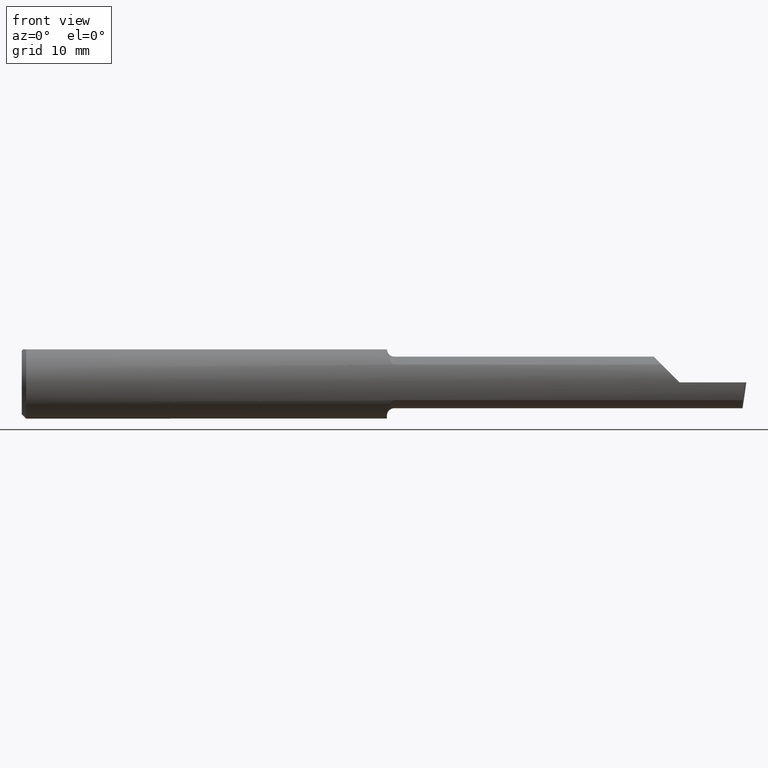
[diagram: clean part render]
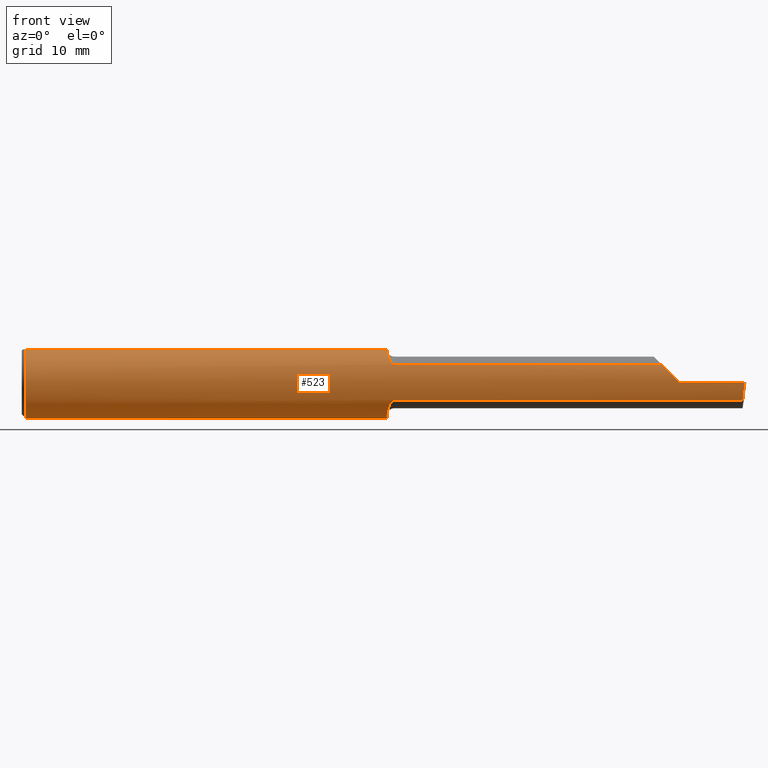
[diagram: same view with one face highlighted and labeled with its STEP entity id]
A machine part, front view. The second image highlights one B-rep face of the part: STEP entity #523.
In plain terms, the highlighted cylindrical surface (edge-blend (fillet) strip) has radius 3.1712 mm, axis along (-1, -0, -0).
Its self-contained STEP definition (entity closure, byte-faithful):
#2 = DIRECTION ( 'NONE',  ( -1.000000000000000000, -0.0000000000000000000, -0.0000000000000000000 ) ) ;
#4 = VERTEX_POINT ( 'NONE', #612 ) ;
#6 = VECTOR ( 'NONE', #229, 39.37007874015748143 ) ;
#8 = CARTESIAN_POINT ( 'NONE',  ( 0.0000000000000000000, 0.0000000000000000000, 0.0000000000000000000 ) ) ;
#9 = CARTESIAN_POINT ( 'NONE',  ( 1.281430773366643461, -0.1083837666170488351, -0.06198269038834007538 ) ) ;
#15 = CIRCLE ( 'NONE', #607, 0.1248500000000000026 ) ;
#23 = B_SPLINE_CURVE_WITH_KNOTS ( 'NONE', 3,
 ( #427, #216, #429, #33, #84, #262, #485, #204, #269, #527, #196, #312, #325, #706 ),
 .UNSPECIFIED., .F., .F.,
 ( 4, 2, 2, 2, 2, 2, 4 ),
 ( 4.804672440286754223E-07, 0.0005473133578846782824, 0.001094146248525327755, 0.001640979139165977445, 0.001914395584486301965, 0.002051103807146470188, 0.002187812029806637543 ),
 .UNSPECIFIED. ) ;
#26 = ORIENTED_EDGE ( 'NONE', *, *, #158, .T. ) ;
#27 = CYLINDRICAL_SURFACE ( 'NONE', #506, 0.1248500000000000026 ) ;
#33 = CARTESIAN_POINT ( 'NONE',  ( 1.261949480984350558, -0.07596136197082528629, 0.09933958580654499160 ) ) ;
#43 = VERTEX_POINT ( 'NONE', #57 ) ;
#47 = CARTESIAN_POINT ( 'NONE',  ( 4.111069666048746882E-31, -0.1248499999999999888, 9.802154982235641300E-16 ) ) ;
#54 = CIRCLE ( 'NONE', #532, 0.1248500000000000026 ) ;
#57 = CARTESIAN_POINT ( 'NONE',  ( 0.01499999999999999424, 0.0000000000000000000, -0.1248500000000000026 ) ) ;
#66 = ORIENTED_EDGE ( 'NONE', *, *, #483, .F. ) ;
#71 = CARTESIAN_POINT ( 'NONE',  ( 1.272652750757542472, -0.1022351105670217114, -0.07173965961731927632 ) ) ;
#72 = VERTEX_POINT ( 'NONE', #561 ) ;
#77 = CARTESIAN_POINT ( 'NONE',  ( 1.268397821753969978, -0.09628495161689389070, -0.07975604660947217817 ) ) ;
#79 = CARTESIAN_POINT ( 'NONE',  ( 1.261502585305459334, -0.07647633808930123789, -0.09967851947582057059 ) ) ;
#84 = CARTESIAN_POINT ( 'NONE',  ( 1.263123628621569905, -0.08156933505717113564, 0.09478144068341103068 ) ) ;
#86 = DIRECTION ( 'NONE',  ( -1.000000000000000000, -0.0000000000000000000, -0.0000000000000000000 ) ) ;
#87 = VECTOR ( 'NONE', #421, 39.37007874015748143 ) ;
#97 = LINE ( 'NONE', #405, #655 ) ;
#120 = ORIENTED_EDGE ( 'NONE', *, *, #211, .F. ) ;
#126 = CARTESIAN_POINT ( 'NONE',  ( 1.274260533375047189, -0.1040753176265711288, -0.06902783361385360361 ) ) ;
#133 = CARTESIAN_POINT ( 'NONE',  ( 1.266341859756230370, -0.09164079654472230552, -0.08508064213884949933 ) ) ;
#139 = ORIENTED_EDGE ( 'NONE', *, *, #141, .F. ) ;
#141 = EDGE_CURVE ( 'NONE', #43, #422, #15, .T. ) ;
#146 = CARTESIAN_POINT ( 'NONE',  ( 2.494815187529301426, -0.1248500000000000304, -6.610128768667490488E-17 ) ) ;
#151 = AXIS2_PLACEMENT_3D ( 'NONE', #707, #86, #481 ) ;
#154 = VECTOR ( 'NONE', #168, 39.37007874015748143 ) ;
#158 = EDGE_CURVE ( 'NONE', #303, #422, #715, .T. ) ;
#168 = DIRECTION ( 'NONE',  ( -1.000000000000000000, -0.0000000000000000000, -0.0000000000000000000 ) ) ;
#171 = CARTESIAN_POINT ( 'NONE',  ( 2.487716879513912627, -0.1088159090909092686, -0.06120964326573853642 ) ) ;
#173 = EDGE_CURVE ( 'NONE', #522, #224, #648, .T. ) ;
#174 = VERTEX_POINT ( 'NONE', #467 ) ;
#176 = DIRECTION ( 'NONE',  ( -1.000000000000000000, -0.0000000000000000000, -0.0000000000000000000 ) ) ;
#179 = CARTESIAN_POINT ( 'NONE',  ( 1.285000000000000142, -0.1088159090909091714, -0.06120964326573855724 ) ) ;
#189 = ORIENTED_EDGE ( 'NONE', *, *, #209, .T. ) ;
#190 = LINE ( 'NONE', #47, #154 ) ;
#195 = CARTESIAN_POINT ( 'NONE',  ( 1.785000000000000142, -0.1088159090909092686, 0.06120964326573853642 ) ) ;
#196 = CARTESIAN_POINT ( 'NONE',  ( 1.278607476457615633, -0.1072127130250407345, 0.06398671514685029538 ) ) ;
#201 = CARTESIAN_POINT ( 'NONE',  ( 1.285000000000000142, -0.1088159090909091853, 0.06120964326573852948 ) ) ;
#204 = CARTESIAN_POINT ( 'NONE',  ( 1.272671163500630920, -0.1022596512740079899, 0.07170602318513191742 ) ) ;
#205 = ORIENTED_EDGE ( 'NONE', *, *, #658, .F. ) ;
#209 = EDGE_CURVE ( 'NONE', #592, #358, #509, .T. ) ;
#211 = EDGE_CURVE ( 'NONE', #717, #72, #257, .T. ) ;
#216 = CARTESIAN_POINT ( 'NONE',  ( 1.260007259122735812, -0.05787968516969616006, 0.1108623250892746409 ) ) ;
#224 = VERTEX_POINT ( 'NONE', #536 ) ;
#229 = DIRECTION ( 'NONE',  ( -1.000000000000000000, -0.0000000000000000000, -0.0000000000000000000 ) ) ;
#233 = DIRECTION ( 'NONE',  ( 1.000000000000000000, 0.0000000000000000000, 0.0000000000000000000 ) ) ;
#247 = CARTESIAN_POINT ( 'NONE',  ( 1.278584160803691638, -0.1072016464447190648, -0.06400548237000629193 ) ) ;
#257 = LINE ( 'NONE', #195, #87 ) ;
#262 = CARTESIAN_POINT ( 'NONE',  ( 1.266367198475050415, -0.09170680217278595614, 0.08501141308632335913 ) ) ;
#268 = EDGE_CURVE ( 'NONE', #303, #717, #23, .T. ) ;
#269 = CARTESIAN_POINT ( 'NONE',  ( 1.274298474000562509, -0.1041086701288377048, 0.06897617952030522803 ) ) ;
#272 = ORIENTED_EDGE ( 'NONE', *, *, #550, .T. ) ;
#277 = CIRCLE ( 'NONE', #151, 0.1248500000000000026 ) ;
#285 = EDGE_CURVE ( 'NONE', #683, #72, #479, .T. ) ;
#292 = ORIENTED_EDGE ( 'NONE', *, *, #173, .F. ) ;
#301 = CARTESIAN_POINT ( 'NONE',  ( 2.270000000000000018, -0.1248500000000000165, 2.816687638038912303E-17 ) ) ;
#303 = VERTEX_POINT ( 'NONE', #365 ) ;
#312 = CARTESIAN_POINT ( 'NONE',  ( 1.281429951084914753, -0.1083820298415334310, 0.06198549150327738178 ) ) ;
#325 = CARTESIAN_POINT ( 'NONE',  ( 1.283151621368557205, -0.1088159090914120053, 0.06120964326484504281 ) ) ;
#358 = VERTEX_POINT ( 'NONE', #730 ) ;
#365 = CARTESIAN_POINT ( 'NONE',  ( 1.260000097795984653, -0.05124158467554382895, 0.1138500000000000345 ) ) ;
#373 = CARTESIAN_POINT ( 'NONE',  ( 2.208790356734260829, -0.1088159090909091714, 0.06120964326573862663 ) ) ;
#389 = EDGE_CURVE ( 'NONE', #358, #683, #190, .T. ) ;
#402 = DIRECTION ( 'NONE',  ( -1.000000000000000000, -0.0000000000000000000, -0.0000000000000000000 ) ) ;
#405 = CARTESIAN_POINT ( 'NONE',  ( 1.785000000000000142, -0.1088159090909092686, -0.06120964326573853642 ) ) ;
#411 = CARTESIAN_POINT ( 'NONE',  ( 1.260000000000000453, -0.06435233443826825217, -0.1079743783864397094 ) ) ;
#418 = CARTESIAN_POINT ( 'NONE',  ( 2.248439214200177894, -0.1248500000000000026, 0.02156078579982227683 ) ) ;
#421 = DIRECTION ( 'NONE',  ( 1.000000000000000000, 0.0000000000000000000, 0.0000000000000000000 ) ) ;
#422 = VERTEX_POINT ( 'NONE', #622 ) ;
#427 = CARTESIAN_POINT ( 'NONE',  ( 1.260000097795984653, -0.05124158467554382895, 0.1138500000000000345 ) ) ;
#429 = CARTESIAN_POINT ( 'NONE',  ( 1.260398955714088443, -0.06414339738381670541, 0.1073503907433057819 ) ) ;
#453 = CARTESIAN_POINT ( 'NONE',  ( 0.0000000000000000000, 0.05124158467494922820, 0.1138500000000000345 ) ) ;
#456 = CARTESIAN_POINT ( 'NONE',  ( 1.285000000000000142, -0.1088159090909091714, -0.06120964326573855724 ) ) ;
#463 = CARTESIAN_POINT ( 'NONE',  ( 1.260000000000000231, -0.05106022727272760409, -0.1139314517192570736 ) ) ;
#467 = CARTESIAN_POINT ( 'NONE',  ( 1.260000000000000231, 0.05124158467494921432, 0.1138500000000000206 ) ) ;
#470 = CARTESIAN_POINT ( 'NONE',  ( 1.260000000000000231, 0.0000000000000000000, 0.0000000000000000000 ) ) ;
#473 = ORIENTED_EDGE ( 'NONE', *, *, #285, .T. ) ;
#479 =( BOUNDED_CURVE ( )  B_SPLINE_CURVE ( 3, ( #698, #418, #594, #373 ),
 .UNSPECIFIED., .F., .F. ) 
 B_SPLINE_CURVE_WITH_KNOTS ( ( 4, 4 ),
 ( 4.712388980384689674, 5.224783288303639139 ),
 .UNSPECIFIED. ) 
 CURVE ( )  GEOMETRIC_REPRESENTATION_ITEM ( )  RATIONAL_B_SPLINE_CURVE ( ( 1.000000000000000000, 0.9782404171696015283, 0.9782404171696015283, 1.000000000000000000 ) ) 
 REPRESENTATION_ITEM ( '' )  );
#480 = CARTESIAN_POINT ( 'NONE',  ( 2.487716879513912627, -0.1088159090909092686, -0.06120964326573853642 ) ) ;
#481 = DIRECTION ( 'NONE',  ( 0.0000000000000000000, 0.0000000000000000000, 1.000000000000000000 ) ) ;
#483 = EDGE_CURVE ( 'NONE', #592, #522, #97, .T. ) ;
#485 = CARTESIAN_POINT ( 'NONE',  ( 1.268377233828254180, -0.09625857022060838042, 0.07979273349069973542 ) ) ;
#490 = CARTESIAN_POINT ( 'NONE',  ( 2.492166948426750128, -0.1248500000000000026, -0.02156078579982233581 ) ) ;
#491 = ORIENTED_EDGE ( 'NONE', *, *, #389, .T. ) ;
#497 = ORIENTED_EDGE ( 'NONE', *, *, #597, .F. ) ;
#504 = DIRECTION ( 'NONE',  ( 0.0000000000000000000, 0.0000000000000000000, 1.000000000000000000 ) ) ;
#505 = CARTESIAN_POINT ( 'NONE',  ( 1.283136503623037772, -0.1088159090909091575, -0.06120964326573868214 ) ) ;
#506 = AXIS2_PLACEMENT_3D ( 'NONE', #8, #2, #504 ) ;
#509 =( BOUNDED_CURVE ( )  B_SPLINE_CURVE ( 3, ( #480, #651, #490, #146 ),
 .UNSPECIFIED., .F., .T. ) 
 B_SPLINE_CURVE_WITH_KNOTS ( ( 4, 4 ),
 ( 0.8483525745957787301, 1.360746882514726197 ),
 .UNSPECIFIED. ) 
 CURVE ( )  GEOMETRIC_REPRESENTATION_ITEM ( )  RATIONAL_B_SPLINE_CURVE ( ( 1.000000000000000000, 0.9782404171696016393, 0.9782404171696016393, 1.000000000000000000 ) ) 
 REPRESENTATION_ITEM ( '' )  );
#522 = VERTEX_POINT ( 'NONE', #179 ) ;
#523 = ADVANCED_FACE ( 'NONE', ( #609 ), #27, .T. ) ;
#527 = CARTESIAN_POINT ( 'NONE',  ( 1.277431632364403491, -0.1064782986023077027, 0.06520809716638661935 ) ) ;
#531 = ORIENTED_EDGE ( 'NONE', *, *, #268, .F. ) ;
#532 = AXIS2_PLACEMENT_3D ( 'NONE', #470, #695, #577 ) ;
#536 = CARTESIAN_POINT ( 'NONE',  ( 1.260000000000000231, -0.05106022727272760409, -0.1139314517192570736 ) ) ;
#550 = EDGE_CURVE ( 'NONE', #4, #174, #675, .T. ) ;
#561 = CARTESIAN_POINT ( 'NONE',  ( 2.208790356734260829, -0.1088159090909091714, 0.06120964326573862663 ) ) ;
#577 = DIRECTION ( 'NONE',  ( 0.0000000000000000000, 0.0000000000000000000, -1.000000000000000000 ) ) ;
#592 = VERTEX_POINT ( 'NONE', #171 ) ;
#594 = CARTESIAN_POINT ( 'NONE',  ( 2.227582158957104319, -0.1193864177600011400, 0.04241784104289499785 ) ) ;
#597 = EDGE_CURVE ( 'NONE', #224, #174, #54, .T. ) ;
#607 = AXIS2_PLACEMENT_3D ( 'NONE', #628, #402, #624 ) ;
#609 = FACE_OUTER_BOUND ( 'NONE', #701, .T. ) ;
#612 = CARTESIAN_POINT ( 'NONE',  ( 0.01499999999999999424, 0.05124158467494922820, 0.1138500000000000345 ) ) ;
#622 = CARTESIAN_POINT ( 'NONE',  ( 0.01499999999999998730, -0.05124158467494919350, 0.1138500000000000345 ) ) ;
#624 = DIRECTION ( 'NONE',  ( 0.0000000000000000000, 0.0000000000000000000, 1.000000000000000000 ) ) ;
#628 = CARTESIAN_POINT ( 'NONE',  ( 0.01499999999999999424, 0.0000000000000000000, 0.0000000000000000000 ) ) ;
#636 = VECTOR ( 'NONE', #233, 39.37007874015748143 ) ;
#648 = B_SPLINE_CURVE_WITH_KNOTS ( 'NONE', 3,
 ( #456, #505, #9, #247, #696, #126, #71, #77, #133, #79, #411, #463 ),
 .UNSPECIFIED., .F., .F.,
 ( 4, 2, 2, 2, 2, 4 ),
 ( 1.958506483897801753E-07, 0.0001392669359846163688, 0.0002783380213208429222, 0.0005564801919932966254, 0.001112764533338205008, 0.002225333216028016134 ),
 .UNSPECIFIED. ) ;
#651 = CARTESIAN_POINT ( 'NONE',  ( 2.489748215127380870, -0.1193864177600011400, -0.04241784104289498397 ) ) ;
#655 = VECTOR ( 'NONE', #176, 39.37007874015748143 ) ;
#658 = EDGE_CURVE ( 'NONE', #4, #43, #277, .T. ) ;
#675 = LINE ( 'NONE', #453, #636 ) ;
#679 = CARTESIAN_POINT ( 'NONE',  ( 0.0000000000000000000, -0.05124158467494919350, 0.1138500000000000345 ) ) ;
#683 = VERTEX_POINT ( 'NONE', #301 ) ;
#695 = DIRECTION ( 'NONE',  ( 1.000000000000000000, 0.0000000000000000000, 0.0000000000000000000 ) ) ;
#696 = CARTESIAN_POINT ( 'NONE',  ( 1.277418472017428197, -0.1064706388662828435, -0.06522095769404985532 ) ) ;
#698 = CARTESIAN_POINT ( 'NONE',  ( 2.270000000000000018, -0.1248500000000000165, 2.816687638038912303E-17 ) ) ;
#701 = EDGE_LOOP ( 'NONE', ( #66, #189, #491, #473, #120, #531, #26, #139, #205, #272, #497, #292 ) ) ;
#706 = CARTESIAN_POINT ( 'NONE',  ( 1.285000000000000142, -0.1088159090909091853, 0.06120964326573852948 ) ) ;
#707 = CARTESIAN_POINT ( 'NONE',  ( 0.01499999999999999424, 0.0000000000000000000, 0.0000000000000000000 ) ) ;
#715 = LINE ( 'NONE', #679, #6 ) ;
#717 = VERTEX_POINT ( 'NONE', #201 ) ;
#730 = CARTESIAN_POINT ( 'NONE',  ( 2.494815187529301426, -0.1248500000000000304, -6.610128768667490488E-17 ) ) ;